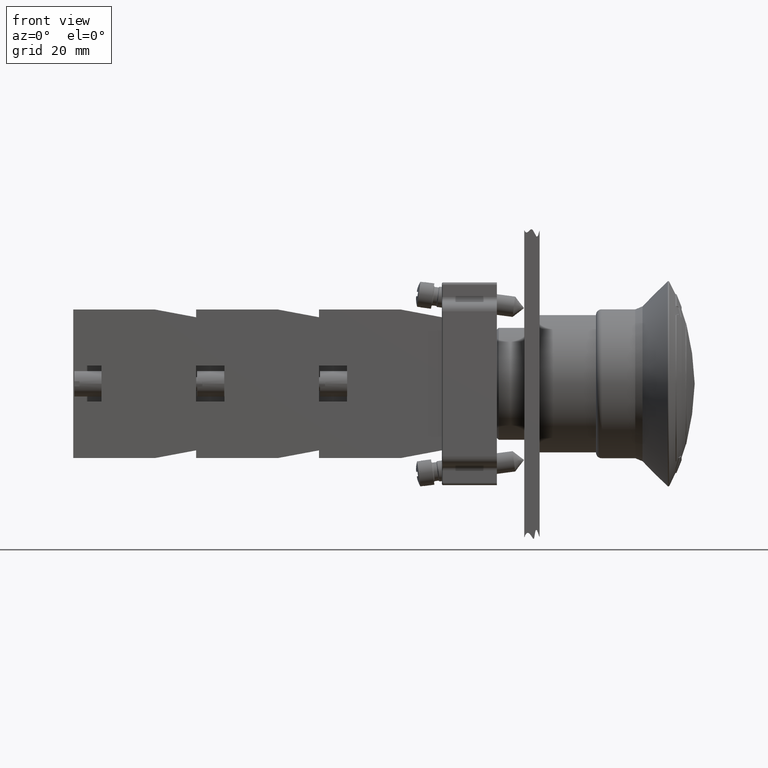
[diagram: clean part render]
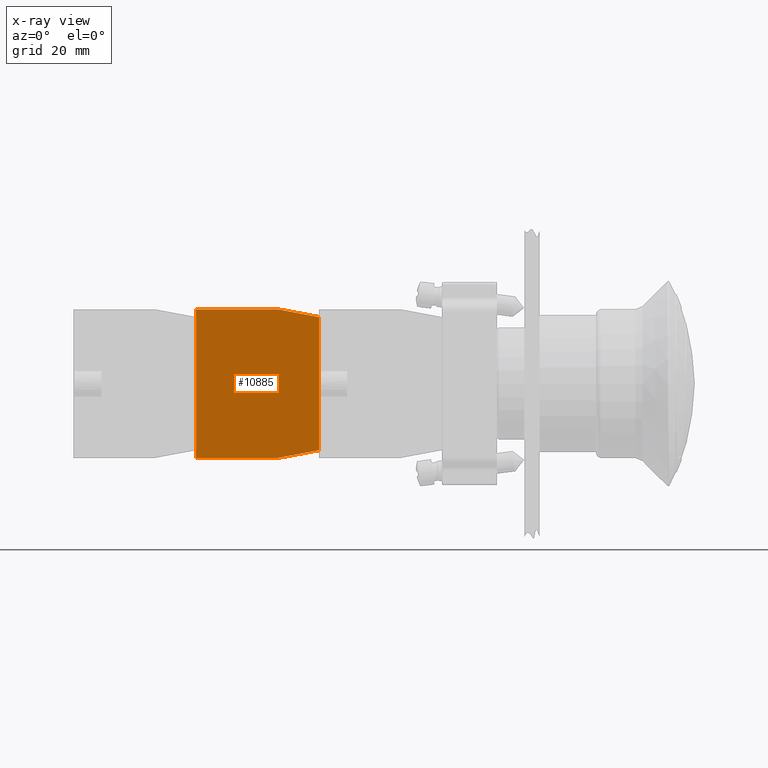
[diagram: x-ray — body ghosted, one internal face saturated and labeled with its STEP entity id]
A machine part, front view, then the same camera in x-ray: the body is ghosted and one INTERNAL B-rep face — a face not visible from any outside direction — is saturated and labeled: STEP entity #10885.
In plain terms, the highlighted planar face has unit normal (0, -1, -0).
Its self-contained STEP definition (entity closure, byte-faithful):
#9190=CARTESIAN_POINT('',(-44.936741828918471,23.797073323279623,0.0));
#9191=VERTEX_POINT('',#9190);
#9198=CARTESIAN_POINT('',(-44.936741828918457,7.797073323279626,0.0));
#9199=VERTEX_POINT('',#9198);
#9200=CARTESIAN_POINT('',(-44.936741828918457,7.797073323279626,0.0));
#9201=DIRECTION('',(0.0,1.0,0.0));
#9202=VECTOR('',#9201,15.999999999999996);
#9203=LINE('',#9200,#9202);
#9204=EDGE_CURVE('',#9199,#9191,#9203,.T.);
#9381=CARTESIAN_POINT('',(-43.436741828918457,-0.202926676720380,0.0));
#9382=VERTEX_POINT('',#9381);
#9389=CARTESIAN_POINT('',(-17.436741828918457,-0.202926676720377,0.0));
#9390=VERTEX_POINT('',#9389);
#9391=CARTESIAN_POINT('',(-17.436741828918457,-0.202926676720377,0.0));
#9392=DIRECTION('',(-1.0,0.0,0.0));
#9393=VECTOR('',#9392,26.0);
#9394=LINE('',#9391,#9393);
#9395=EDGE_CURVE('',#9390,#9382,#9394,.T.);
#10739=CARTESIAN_POINT('',(-15.936741828918466,23.797073323279626,0.0));
#10740=VERTEX_POINT('',#10739);
#10747=CARTESIAN_POINT('',(-44.936741828918471,23.797073323279623,0.0));
#10748=DIRECTION('',(1.0,0.0,0.0));
#10749=VECTOR('',#10748,29.000000000000007);
#10750=LINE('',#10747,#10749);
#10751=EDGE_CURVE('',#9191,#10740,#10750,.T.);
#10787=CARTESIAN_POINT('',(-15.936741828918466,7.797073323279626,0.0));
#10788=VERTEX_POINT('',#10787);
#10795=CARTESIAN_POINT('',(-15.936741828918466,23.797073323279626,0.0));
#10796=DIRECTION('',(0.0,-1.0,0.0));
#10797=VECTOR('',#10796,16.0);
#10798=LINE('',#10795,#10797);
#10799=EDGE_CURVE('',#10740,#10788,#10798,.T.);
#10827=CARTESIAN_POINT('',(-15.936741828918466,7.797073323279626,0.0));
#10828=DIRECTION('',(-0.184288535050184,-0.982872186934322,0.0));
#10829=VECTOR('',#10828,8.139410298049855);
#10830=LINE('',#10827,#10829);
#10831=EDGE_CURVE('',#10788,#9390,#10830,.T.);
#10844=CARTESIAN_POINT('',(-43.436741828918457,-0.202926676720380,0.0));
#10845=DIRECTION('',(-0.184288535050185,0.982872186934322,0.0));
#10846=VECTOR('',#10845,8.139410298049860);
#10847=LINE('',#10844,#10846);
#10848=EDGE_CURVE('',#9382,#9199,#10847,.T.);
#10872=CARTESIAN_POINT('',(-30.436741828918464,12.124046801833057,0.0));
#10873=DIRECTION('',(0.0,0.0,1.0));
#10874=DIRECTION('',(1.0,0.0,0.0));
#10875=AXIS2_PLACEMENT_3D('',#10872,#10873,#10874);
#10876=PLANE('',#10875);
#10877=ORIENTED_EDGE('',*,*,#10751,.T.);
#10878=ORIENTED_EDGE('',*,*,#10799,.T.);
#10879=ORIENTED_EDGE('',*,*,#10831,.T.);
#10880=ORIENTED_EDGE('',*,*,#9395,.T.);
#10881=ORIENTED_EDGE('',*,*,#10848,.T.);
#10882=ORIENTED_EDGE('',*,*,#9204,.T.);
#10883=EDGE_LOOP('',(#10877,#10878,#10879,#10880,#10881,#10882));
#10884=FACE_OUTER_BOUND('',#10883,.T.);
#10885=ADVANCED_FACE('',(#10884),#10876,.F.);